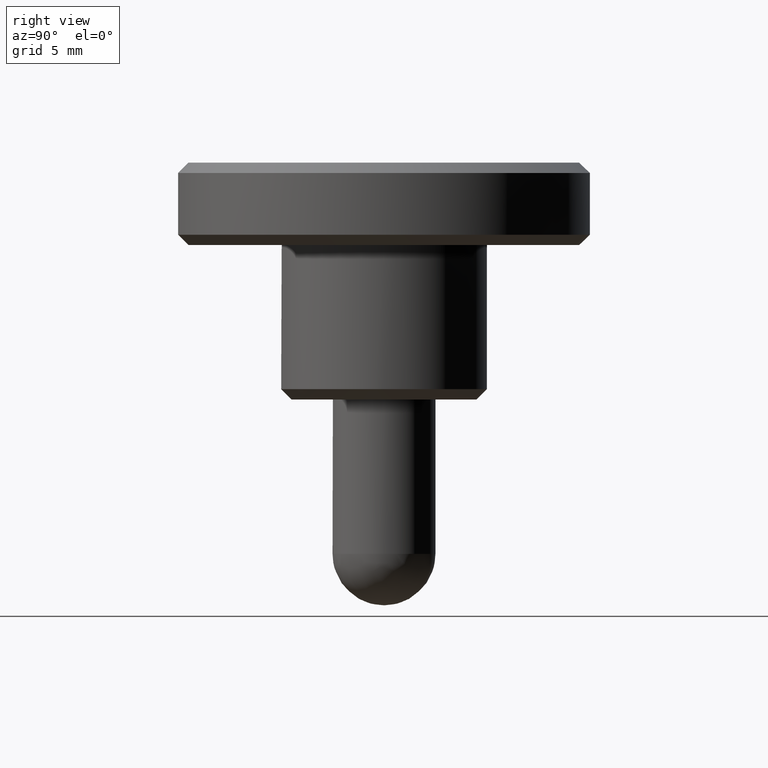
[diagram: clean part render]
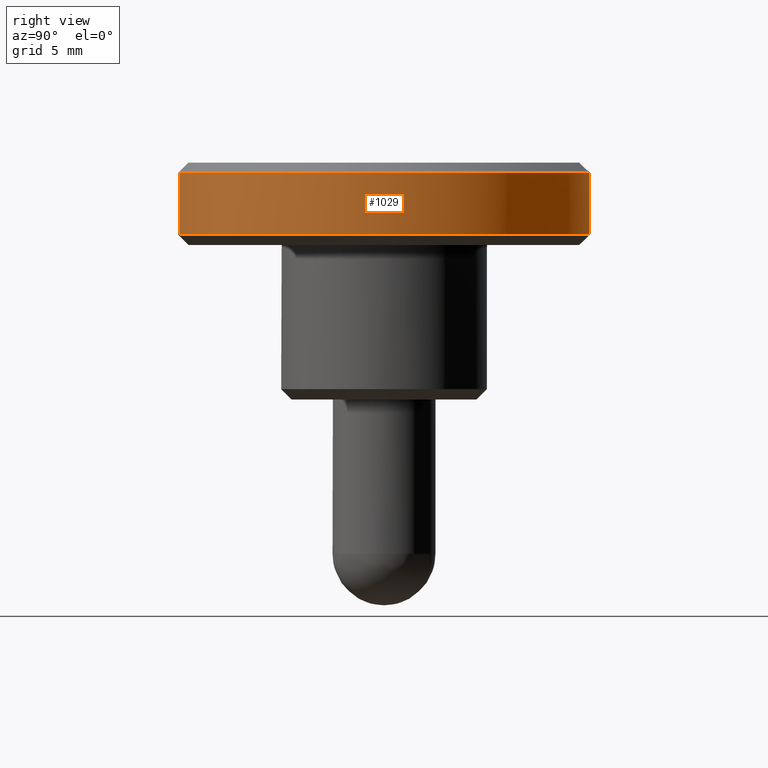
[diagram: same view with one face highlighted and labeled with its STEP entity id]
A machine part, right view. The second image highlights one B-rep face of the part: STEP entity #1029.
In plain terms, the highlighted face is a freeform B-spline surface patch.
Its self-contained STEP definition (entity closure, byte-faithful):
#150=CARTESIAN_POINT('',(1.241278290749142,-9.922662354676380,11.000000000000099));
#151=VERTEX_POINT('',#150);
#167=CARTESIAN_POINT('',(10.0,0.0,11.000000000000121));
#168=VERTEX_POINT('',#167);
#169=CARTESIAN_POINT('',(10.0,0.0,11.000000000000121));
#170=CARTESIAN_POINT('',(9.999999999999998,-8.826987552511923,11.000000000000119));
#171=CARTESIAN_POINT('',(1.241278290749142,-9.922662354676380,11.000000000000099));
#179=(BOUNDED_CURVE()B_SPLINE_CURVE(2,(#169,#170,#171),.UNSPECIFIED.,.F.,.U.)B_SPLINE_CURVE_WITH_KNOTS((3,3),(0.500000000000000,0.728526100433277),.UNSPECIFIED.)CURVE()GEOMETRIC_REPRESENTATION_ITEM()RATIONAL_B_SPLINE_CURVE((1.0,0.732265019444844,0.954005487336481))REPRESENTATION_ITEM(''));
#180=EDGE_CURVE('',#168,#151,#179,.T.);
#182=CARTESIAN_POINT('',(-0.087258805515290,9.999619287793767,11.000000000000149));
#183=VERTEX_POINT('',#182);
#184=CARTESIAN_POINT('',(-0.087258805515290,9.999619287793767,11.000000000000151));
#185=CARTESIAN_POINT('',(-0.043630233285768,10.000000000000002,11.000000000000121));
#186=CARTESIAN_POINT('',(0.0,10.0,11.000000000000121));
#187=CARTESIAN_POINT('',(10.000000000000002,10.000000000000002,11.000000000000119));
#188=CARTESIAN_POINT('',(10.0,0.0,11.000000000000121));
#196=(BOUNDED_CURVE()B_SPLINE_CURVE(2,(#184,#185,#186,#187,#188),.UNSPECIFIED.,.F.,.U.)B_SPLINE_CURVE_WITH_KNOTS((3,2,3),(0.248460221033578,0.250000000000000,0.500000000000000),.UNSPECIFIED.)CURVE()GEOMETRIC_REPRESENTATION_ITEM()RATIONAL_B_SPLINE_CURVE((0.996414295095714,0.998196036729054,1.0,0.707106781186548,1.0))REPRESENTATION_ITEM(''));
#197=EDGE_CURVE('',#183,#168,#196,.T.);
#361=CARTESIAN_POINT('',(-0.087258337325771,9.999619291878959,8.000000000000119));
#362=VERTEX_POINT('',#361);
#376=CARTESIAN_POINT('',(10.0,0.0,8.000000000000119));
#377=VERTEX_POINT('',#376);
#378=CARTESIAN_POINT('',(10.0,0.0,8.000000000000119));
#379=CARTESIAN_POINT('',(10.000000000000002,10.000000000000002,8.000000000000119));
#380=CARTESIAN_POINT('',(0.0,10.0,8.000000000000119));
#381=CARTESIAN_POINT('',(-0.043629999177642,10.000000000000002,8.000000000000119));
#382=CARTESIAN_POINT('',(-0.087258337325771,9.999619291878959,8.000000000000119));
#390=(BOUNDED_CURVE()B_SPLINE_CURVE(2,(#378,#379,#380,#381,#382),.UNSPECIFIED.,.F.,.U.)B_SPLINE_CURVE_WITH_KNOTS((3,2,3),(0.500000000000000,0.750000000000000,0.751539770719286),.UNSPECIFIED.)CURVE()GEOMETRIC_REPRESENTATION_ITEM()RATIONAL_B_SPLINE_CURVE((1.0,0.707106781186548,1.0,0.998196046391175,0.996414314181917))REPRESENTATION_ITEM(''));
#391=EDGE_CURVE('',#377,#362,#390,.T.);
#393=CARTESIAN_POINT('',(8.188661127107650,-5.739845724877757,8.000000000000160));
#394=VERTEX_POINT('',#393);
#395=CARTESIAN_POINT('',(8.188661127107650,-5.739845724877757,8.000000000000160));
#396=CARTESIAN_POINT('',(10.000000000000002,-3.155727452816521,8.000000000000119));
#397=CARTESIAN_POINT('',(10.0,0.0,8.000000000000119));
#405=(BOUNDED_CURVE()B_SPLINE_CURVE(2,(#395,#396,#397),.UNSPECIFIED.,.F.,.U.)B_SPLINE_CURVE_WITH_KNOTS((3,3),(0.401326273797088,0.500000000000000),.UNSPECIFIED.)CURVE()GEOMETRIC_REPRESENTATION_ITEM()RATIONAL_B_SPLINE_CURVE((0.860049271925852,0.884396538880448,1.0))REPRESENTATION_ITEM(''));
#406=EDGE_CURVE('',#394,#377,#405,.T.);
#444=CARTESIAN_POINT('',(1.241273483490002,-9.922662956038625,8.000000000000119));
#445=VERTEX_POINT('',#444);
#446=CARTESIAN_POINT('',(1.241273483490001,-9.922662956038625,8.000000000000119));
#447=CARTESIAN_POINT('',(5.642649241165003,-9.372073760067680,8.000000000000121));
#448=CARTESIAN_POINT('',(8.188661127107650,-5.739845724877757,8.000000000000160));
#456=(BOUNDED_CURVE()B_SPLINE_CURVE(2,(#446,#447,#448),.UNSPECIFIED.,.F.,.U.)B_SPLINE_CURVE_WITH_KNOTS((3,3),(0.271473817862368,0.401326273797088),.UNSPECIFIED.)CURVE()GEOMETRIC_REPRESENTATION_ITEM()RATIONAL_B_SPLINE_CURVE((0.954005645893153,0.828008803495067,0.860049271925852))REPRESENTATION_ITEM(''));
#457=EDGE_CURVE('',#445,#394,#456,.T.);
#994=CARTESIAN_POINT('',(1.241280020798293,-9.922662138255385,7.925000000000117));
#995=CARTESIAN_POINT('',(10.077328305024446,-8.817312581332210,7.925000000000119));
#996=CARTESIAN_POINT('',(9.999619230641709,0.087265354983739,7.925000000000117));
#997=CARTESIAN_POINT('',(9.912353875657971,10.086884585625448,7.925000000000117));
#998=CARTESIAN_POINT('',(-0.087265354983739,9.999619230641709,7.925000000000117));
#999=CARTESIAN_POINT('',(1.241280020798293,-9.922662138255385,11.076875000000120));
#1000=CARTESIAN_POINT('',(10.077328305024446,-8.817312581332210,11.076875000000122));
#1001=CARTESIAN_POINT('',(9.999619230641709,0.087265354983739,11.076875000000120));
#1002=CARTESIAN_POINT('',(9.912353875657971,10.086884585625448,11.076875000000122));
#1003=CARTESIAN_POINT('',(-0.087265354983739,9.999619230641709,11.076875000000120));
#1011=(BOUNDED_SURFACE()B_SPLINE_SURFACE(2,1,((#994,#999),(#995,#1000),(#996,#1001),(#997,#1002),(#998,#1003)),.UNSPECIFIED.,.F.,.F.,.U.)B_SPLINE_SURFACE_WITH_KNOTS((3,2,3),(2,2),(0.0,15.243059095329890,31.811601590253691),(0.0,3.151875000000005),.UNSPECIFIED.)GEOMETRIC_REPRESENTATION_ITEM()RATIONAL_B_SPLINE_SURFACE(((0.956886118190660,0.956886118190660),(0.730538238691624,0.730538238691624),(1.0,1.0),(0.707106781186548,0.707106781186548),(1.0,1.0)))REPRESENTATION_ITEM('')SURFACE());
#1012=ORIENTED_EDGE('',*,*,#180,.T.);
#1013=CARTESIAN_POINT('',(1.241273483490002,-9.922662956038625,8.000000000000119));
#1014=CARTESIAN_POINT('',(1.241278290749142,-9.922662354676380,11.000000000000099));
#1015=QUASI_UNIFORM_CURVE('',1,(#1013,#1014),.UNSPECIFIED.,.F.,.U.);
#1016=EDGE_CURVE('',#445,#151,#1015,.T.);
#1017=ORIENTED_EDGE('',*,*,#1016,.F.);
#1018=ORIENTED_EDGE('',*,*,#457,.T.);
#1019=ORIENTED_EDGE('',*,*,#406,.T.);
#1020=ORIENTED_EDGE('',*,*,#391,.T.);
#1021=CARTESIAN_POINT('',(-0.087258337325771,9.999619291878959,8.000000000000119));
#1022=CARTESIAN_POINT('',(-0.087258805515290,9.999619287793767,11.000000000000149));
#1023=QUASI_UNIFORM_CURVE('',1,(#1021,#1022),.UNSPECIFIED.,.F.,.U.);
#1024=EDGE_CURVE('',#362,#183,#1023,.T.);
#1025=ORIENTED_EDGE('',*,*,#1024,.T.);
#1026=ORIENTED_EDGE('',*,*,#197,.T.);
#1027=EDGE_LOOP('',(#1012,#1017,#1018,#1019,#1020,#1025,#1026));
#1028=FACE_OUTER_BOUND('',#1027,.T.);
#1029=ADVANCED_FACE('',(#1028),#1011,.T.);